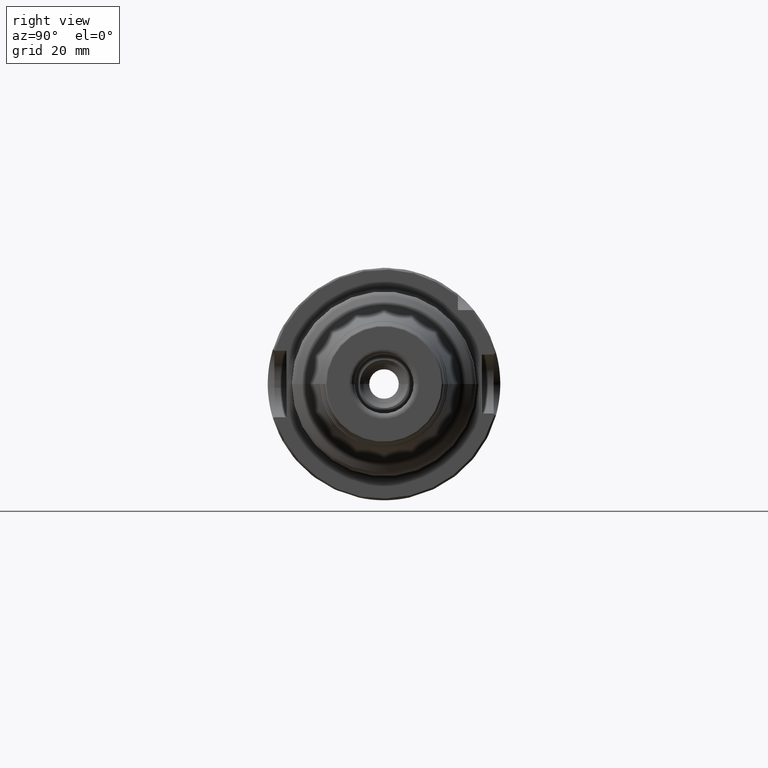
[diagram: clean part render]
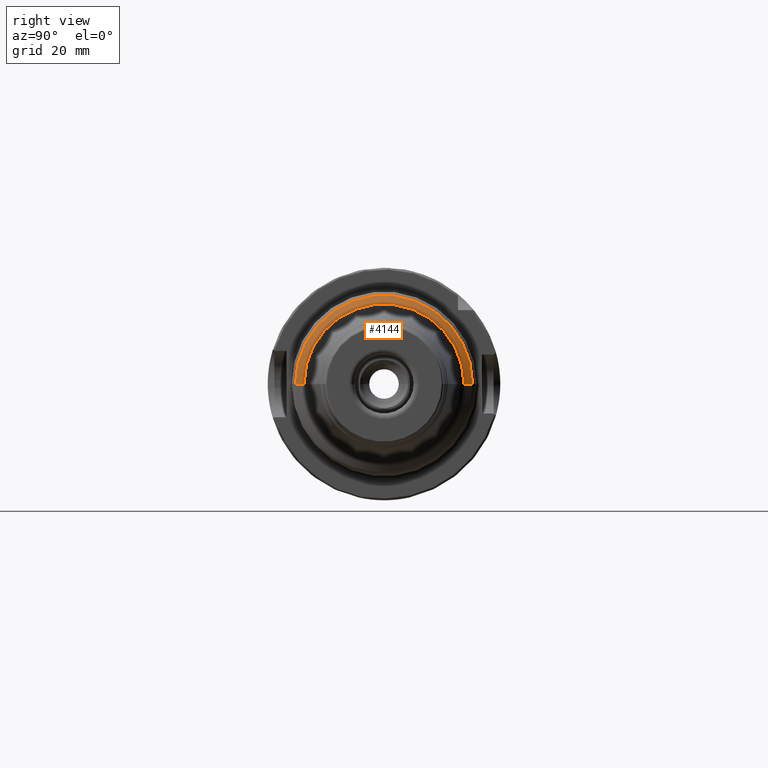
[diagram: same view with one face highlighted and labeled with its STEP entity id]
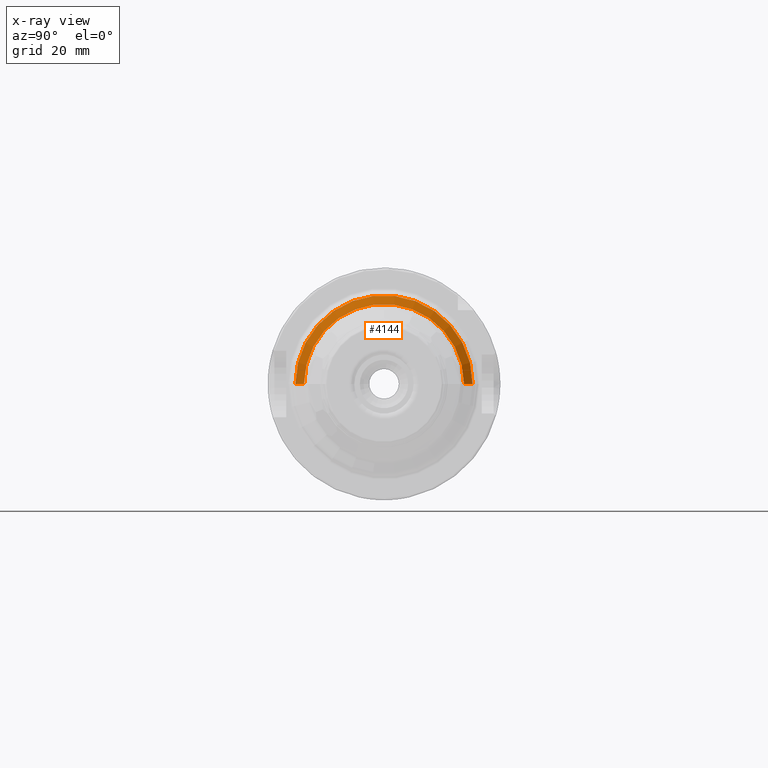
[diagram: x-ray of the same camera — body ghosted, the highlighted face saturated]
A machine part, right view. The second image highlights one B-rep face of the part: STEP entity #4144.
The next image is the same camera in x-ray: the body ghosted, the highlighted face saturated — about 0% of this face is hidden behind the body in this view.
In plain terms, the highlighted conical surface has half-angle 60 deg.
Its self-contained STEP definition (entity closure, byte-faithful):
#640=CARTESIAN_POINT('',(2.144553249864E0,0.E0,0.E0));
#641=DIRECTION('',(1.E0,0.E0,0.E0));
#642=DIRECTION('',(0.E0,1.E0,0.E0));
#643=AXIS2_PLACEMENT_3D('',#640,#641,#642);
#645=CARTESIAN_POINT('',(2.091480704180E0,0.E0,0.E0));
#646=DIRECTION('',(-1.E0,0.E0,0.E0));
#647=DIRECTION('',(0.E0,-1.E0,0.E0));
#648=AXIS2_PLACEMENT_3D('',#645,#646,#647);
#650=DIRECTION('',(-5.E-1,8.660254037844E-1,4.818886712384E-11));
#651=VECTOR('',#650,1.061450913661E-1);
#652=CARTESIAN_POINT('',(2.144553249864E0,8.528276228930E-1,
-2.822371622104E-13));
#653=LINE('',#652,#651);
#659=DIRECTION('',(-5.E-1,-8.660254037844E-1,-4.818825992709E-11));
#660=VECTOR('',#659,1.061450913661E-1);
#661=CARTESIAN_POINT('',(2.144553249864E0,-8.528276228930E-1,
2.822105111916E-13));
#662=LINE('',#661,#660);
#3254=CARTESIAN_POINT('',(2.091480704180E0,9.447519685039E-1,0.E0));
#3255=CARTESIAN_POINT('',(2.091480704180E0,-9.447519685039E-1,0.E0));
#3256=VERTEX_POINT('',#3254);
#3257=VERTEX_POINT('',#3255);
#3258=CARTESIAN_POINT('',(2.144553249864E0,8.528276228930E-1,
-2.822371622104E-13));
#3259=VERTEX_POINT('',#3258);
#3260=CARTESIAN_POINT('',(2.144553249864E0,-8.528276228930E-1,
2.822105111916E-13));
#3261=VERTEX_POINT('',#3260);
#4130=CARTESIAN_POINT('',(2.118016977022E0,0.E0,0.E0));
#4131=DIRECTION('',(-1.E0,0.E0,0.E0));
#4132=DIRECTION('',(0.E0,1.E0,0.E0));
#4133=AXIS2_PLACEMENT_3D('',#4130,#4131,#4132);
#4134=CONICAL_SURFACE('',#4133,8.987897956980E-1,6.E1);
#4136=ORIENTED_EDGE('',*,*,#4135,.F.);
#4137=ORIENTED_EDGE('',*,*,#4120,.T.);
#4139=ORIENTED_EDGE('',*,*,#4138,.T.);
#4141=ORIENTED_EDGE('',*,*,#4140,.T.);
#4142=EDGE_LOOP('',(#4136,#4137,#4139,#4141));
#4143=FACE_OUTER_BOUND('',#4142,.F.);
#4144=ADVANCED_FACE('',(#4143),#4134,.T.);
#644=CIRCLE('',#643,8.528276228921E-1);
#649=CIRCLE('',#648,9.447519685039E-1);
#4120=EDGE_CURVE('',#3259,#3261,#644,.T.);
#4135=EDGE_CURVE('',#3259,#3256,#653,.T.);
#4138=EDGE_CURVE('',#3261,#3257,#662,.T.);
#4140=EDGE_CURVE('',#3257,#3256,#649,.T.);